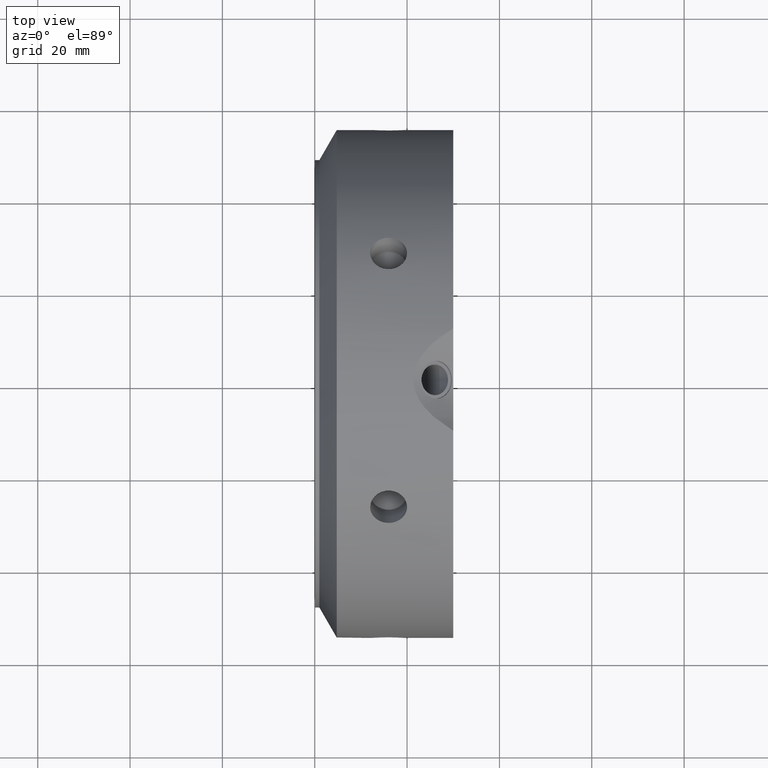
[diagram: clean part render]
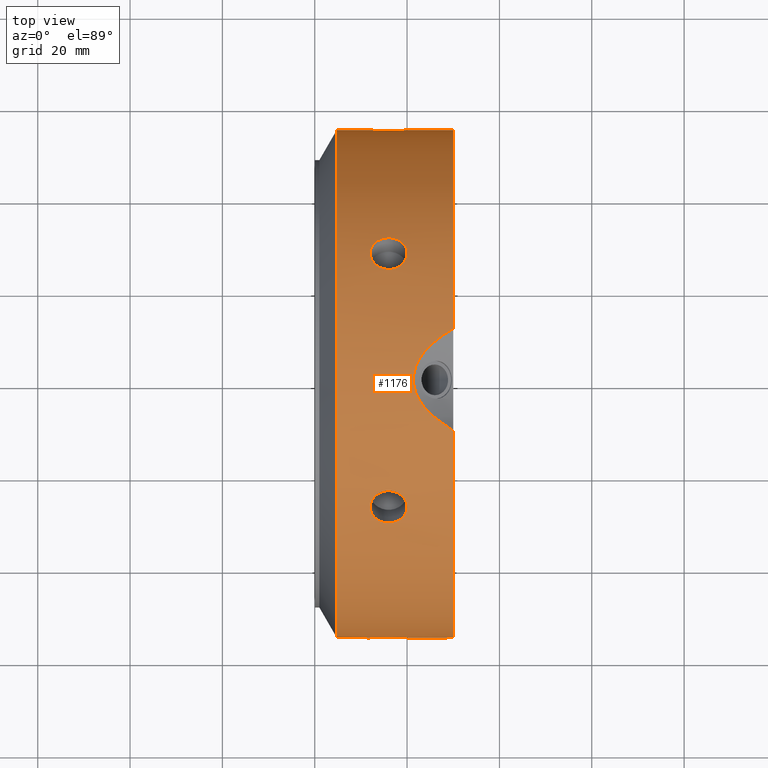
[diagram: same view with one face highlighted and labeled with its STEP entity id]
A machine part, top view. The second image highlights one B-rep face of the part: STEP entity #1176.
In plain terms, the highlighted cylindrical surface (bore or boss wall) has radius 55 mm, axis along (1, 0, 0).
Its self-contained STEP definition (entity closure, byte-faithful):
#90=CARTESIAN_POINT('',(11.999999999999996,27.500000000000043,47.631397208144108));
#91=VERTEX_POINT('',#90);
#92=CARTESIAN_POINT('',(20.0,27.50000000000005,47.631397208144108));
#93=VERTEX_POINT('',#92);
#94=CARTESIAN_POINT('',(11.999999999999996,27.500000000000057,47.631397208144094));
#95=CARTESIAN_POINT('',(11.999999999999996,27.935124948223553,47.380177702156139));
#96=CARTESIAN_POINT('',(12.10044885339684,28.395352863998596,47.105699330549619));
#97=CARTESIAN_POINT('',(12.508718819773028,29.235069760328575,46.589201214471714));
#98=CARTESIAN_POINT('',(12.816530126244007,29.614767293027789,46.347512854380248));
#99=CARTESIAN_POINT('',(13.526615960860187,30.211437054811331,45.960803527897014));
#100=CARTESIAN_POINT('',(13.976287700319762,30.468268242734169,45.790026100279555));
#101=CARTESIAN_POINT('',(14.961752431234759,30.808093468462676,45.562081130142708));
#102=CARTESIAN_POINT('',(15.497560511689183,30.891277918942759,45.505262866339322));
#103=CARTESIAN_POINT('',(16.502439488310813,30.891277918942759,45.505262866339322));
#104=CARTESIAN_POINT('',(17.038247568765247,30.808093468462676,45.562081130142715));
#105=CARTESIAN_POINT('',(18.023712299680238,30.468268242734169,45.790026100279562));
#106=CARTESIAN_POINT('',(18.473384039139809,30.211437054811334,45.960803527897021));
#107=CARTESIAN_POINT('',(19.183469873755989,29.614767293027789,46.347512854380248));
#108=CARTESIAN_POINT('',(19.49128118022697,29.235069760328575,46.589201214471714));
#109=CARTESIAN_POINT('',(19.899551146603159,28.395352863998596,47.105699330549619));
#110=CARTESIAN_POINT('',(20.0,27.935124948223546,47.380177702156132));
#111=CARTESIAN_POINT('',(20.0,27.50000000000005,47.631397208144087));
#112=B_SPLINE_CURVE_WITH_KNOTS('',3,(#94,#95,#96,#97,#98,#99,#100,#101,#102,#103,#104,#105,#106,#107,#108,#109,#110,#111),.UNSPECIFIED.,.F.,.U.,(4,2,2,2,2,2,2,2,4),(0.602927100172038,0.753658803764812,0.904390507357586,1.055122353850831,1.205854200344075,1.356586046837319,1.507317893330563,1.658049596923338,1.808781300516112),.UNSPECIFIED.);
#113=EDGE_CURVE('',#91,#93,#112,.T.);
#115=CARTESIAN_POINT('',(20.0,27.500000000000053,47.631397208144094));
#116=CARTESIAN_POINT('',(20.0,27.064875051776557,47.882616714132055));
#117=CARTESIAN_POINT('',(19.899551146603159,26.597055851288406,48.143946594920742));
#118=CARTESIAN_POINT('',(19.49128118022697,25.729896913593148,48.612913701090584));
#119=CARTESIAN_POINT('',(19.183469873755989,25.330739887605329,48.820897230116657));
#120=CARTESIAN_POINT('',(18.473384039139809,24.697504906098704,49.144273738249595));
#121=CARTESIAN_POINT('',(18.023712299680234,24.421191721427608,49.281307357666179));
#122=CARTESIAN_POINT('',(17.038247568765243,24.053872973759965,49.461632150925425));
#123=CARTESIAN_POINT('',(16.502439488310813,23.963074688667255,49.505262866339322));
#124=CARTESIAN_POINT('',(15.999999999999998,23.963074688667255,49.505262866339322));
#125=CARTESIAN_POINT('',(15.497560511689183,23.963074688667255,49.505262866339322));
#126=CARTESIAN_POINT('',(14.961752431234757,24.053872973759965,49.461632150925425));
#127=CARTESIAN_POINT('',(13.976287700319762,24.421191721427608,49.281307357666179));
#128=CARTESIAN_POINT('',(13.526615960860187,24.697504906098704,49.144273738249595));
#129=CARTESIAN_POINT('',(12.816530126244007,25.330739887605329,48.820897230116657));
#130=CARTESIAN_POINT('',(12.508718819773026,25.729896913593148,48.612913701090584));
#131=CARTESIAN_POINT('',(12.10044885339684,26.597055851288406,48.143946594920742));
#132=CARTESIAN_POINT('',(12.0,27.064875051776554,47.882616714132041));
#133=CARTESIAN_POINT('',(12.0,27.50000000000005,47.631397208144087));
#134=B_SPLINE_CURVE_WITH_KNOTS('',3,(#115,#116,#117,#118,#119,#120,#121,#122,#123,#124,#125,#126,#127,#128,#129,#130,#131,#132,#133),.UNSPECIFIED.,.F.,.U.,(4,2,2,2,3,2,2,2,4),(1.808781300516112,1.959513004108886,2.110244707701661,2.260976554194905,2.411708400688149,2.562440247181394,2.713172093674638,2.863903797267413,3.014635500860187),.UNSPECIFIED.);
#135=EDGE_CURVE('',#93,#91,#134,.T.);
#202=CARTESIAN_POINT('',(11.999999999999996,55.0,-3.663736E-014));
#203=VERTEX_POINT('',#202);
#204=CARTESIAN_POINT('',(20.0,55.0,-3.108624E-014));
#205=VERTEX_POINT('',#204);
#206=CARTESIAN_POINT('',(11.999999999999996,55.0,-3.261280E-014));
#207=CARTESIAN_POINT('',(11.999999999999996,55.0,-0.502439011975947));
#208=CARTESIAN_POINT('',(12.10044885339684,54.992408715286885,-1.038247264371157));
#209=CARTESIAN_POINT('',(12.508718819773026,54.964966673921609,-2.023712486618893));
#210=CARTESIAN_POINT('',(12.816530126244011,54.945507180633015,-2.473384375736422));
#211=CARTESIAN_POINT('',(13.526615960860187,54.908941960909928,-3.1834702103526));
#212=CARTESIAN_POINT('',(13.976287700319761,54.889459964161688,-3.491281257386644));
#213=CARTESIAN_POINT('',(14.961752431234757,54.861966442222538,-3.899551020782734));
#214=CARTESIAN_POINT('',(15.497560511689183,54.854352607609904,-4.000000000000034));
#215=CARTESIAN_POINT('',(16.502439488310813,54.854352607609904,-4.000000000000034));
#216=CARTESIAN_POINT('',(17.038247568765243,54.861966442222531,-3.899551020782734));
#217=CARTESIAN_POINT('',(18.023712299680234,54.889459964161674,-3.491281257386643));
#218=CARTESIAN_POINT('',(18.473384039139809,54.908941960909928,-3.183470210352601));
#219=CARTESIAN_POINT('',(19.183469873755993,54.945507180633015,-2.473384375736423));
#220=CARTESIAN_POINT('',(19.49128118022697,54.964966673921616,-2.023712486618892));
#221=CARTESIAN_POINT('',(19.899551146603159,54.992408715286899,-1.038247264371158));
#222=CARTESIAN_POINT('',(20.0,55.0,-0.502439011975948));
#223=CARTESIAN_POINT('',(20.0,55.0,-3.386180E-014));
#224=B_SPLINE_CURVE_WITH_KNOTS('',3,(#206,#207,#208,#209,#210,#211,#212,#213,#214,#215,#216,#217,#218,#219,#220,#221,#222,#223),.UNSPECIFIED.,.F.,.U.,(4,2,2,2,2,2,2,2,4),(0.602927100172037,0.753658803764812,0.904390507357586,1.05512235385083,1.205854200344075,1.356586046837319,1.507317893330564,1.658049596923338,1.808781300516112),.UNSPECIFIED.);
#225=EDGE_CURVE('',#203,#205,#224,.T.);
#227=CARTESIAN_POINT('',(20.0,55.0,-3.386180E-014));
#228=CARTESIAN_POINT('',(20.0,55.0,0.50243901197588));
#229=CARTESIAN_POINT('',(19.899551146603159,54.992408715286899,1.038247264371091));
#230=CARTESIAN_POINT('',(19.491281180226974,54.964966673921616,2.023712486618827));
#231=CARTESIAN_POINT('',(19.183469873755989,54.945507180633015,2.473384375736357));
#232=CARTESIAN_POINT('',(18.473384039139809,54.908941960909928,3.183470210352534));
#233=CARTESIAN_POINT('',(18.023712299680238,54.889459964161688,3.491281257386578));
#234=CARTESIAN_POINT('',(17.038247568765243,54.861966442222538,3.899551020782668));
#235=CARTESIAN_POINT('',(16.502439488310813,54.854352607609925,3.999999999999967));
#236=CARTESIAN_POINT('',(15.999999999999998,54.854352607609925,3.999999999999967));
#237=CARTESIAN_POINT('',(15.497560511689183,54.854352607609925,3.999999999999967));
#238=CARTESIAN_POINT('',(14.961752431234753,54.861966442222538,3.899551020782668));
#239=CARTESIAN_POINT('',(13.976287700319761,54.889459964161688,3.491281257386578));
#240=CARTESIAN_POINT('',(13.526615960860187,54.908941960909928,3.183470210352536));
#241=CARTESIAN_POINT('',(12.816530126244007,54.945507180633015,2.473384375736358));
#242=CARTESIAN_POINT('',(12.508718819773026,54.964966673921616,2.023712486618828));
#243=CARTESIAN_POINT('',(12.10044885339684,54.992408715286899,1.038247264371092));
#244=CARTESIAN_POINT('',(11.999999999999996,55.0,0.502439011975881));
#245=CARTESIAN_POINT('',(11.999999999999996,55.0,-3.261280E-014));
#246=B_SPLINE_CURVE_WITH_KNOTS('',3,(#227,#228,#229,#230,#231,#232,#233,#234,#235,#236,#237,#238,#239,#240,#241,#242,#243,#244,#245),.UNSPECIFIED.,.F.,.U.,(4,2,2,2,3,2,2,2,4),(1.808781300516112,1.959513004108886,2.11024470770166,2.260976554194905,2.411708400688149,2.562440247181394,2.713172093674638,2.863903797267413,3.014635500860186),.UNSPECIFIED.);
#247=EDGE_CURVE('',#205,#203,#246,.T.);
#314=CARTESIAN_POINT('',(11.999999999999996,27.499999999999986,-47.631397208144143));
#315=VERTEX_POINT('',#314);
#316=CARTESIAN_POINT('',(20.0,27.499999999999993,-47.631397208144143));
#317=VERTEX_POINT('',#316);
#318=CARTESIAN_POINT('',(11.999999999999996,27.499999999999993,-47.631397208144122));
#319=CARTESIAN_POINT('',(11.999999999999996,27.06487505177649,-47.882616714132084));
#320=CARTESIAN_POINT('',(12.100448853396838,26.597055851288346,-48.143946594920791));
#321=CARTESIAN_POINT('',(12.508718819773023,25.729896913593091,-48.612913701090619));
#322=CARTESIAN_POINT('',(12.816530126244011,25.330739887605262,-48.820897230116671));
#323=CARTESIAN_POINT('',(13.526615960860187,24.697504906098633,-49.144273738249609));
#324=CARTESIAN_POINT('',(13.976287700319761,24.421191721427547,-49.281307357666208));
#325=CARTESIAN_POINT('',(14.961752431234757,24.053872973759898,-49.461632150925453));
#326=CARTESIAN_POINT('',(15.497560511689183,23.963074688667184,-49.505262866339365));
#327=CARTESIAN_POINT('',(16.502439488310813,23.963074688667184,-49.505262866339365));
#328=CARTESIAN_POINT('',(17.038247568765236,24.053872973759901,-49.46163215092546));
#329=CARTESIAN_POINT('',(18.023712299680231,24.421191721427547,-49.281307357666215));
#330=CARTESIAN_POINT('',(18.473384039139805,24.697504906098633,-49.144273738249609));
#331=CARTESIAN_POINT('',(19.183469873755985,25.330739887605262,-48.820897230116671));
#332=CARTESIAN_POINT('',(19.491281180226977,25.729896913593091,-48.612913701090612));
#333=CARTESIAN_POINT('',(19.899551146603159,26.597055851288349,-48.143946594920791));
#334=CARTESIAN_POINT('',(20.0,27.06487505177649,-47.882616714132084));
#335=CARTESIAN_POINT('',(20.0,27.499999999999986,-47.631397208144122));
#336=B_SPLINE_CURVE_WITH_KNOTS('',3,(#318,#319,#320,#321,#322,#323,#324,#325,#326,#327,#328,#329,#330,#331,#332,#333,#334,#335),.UNSPECIFIED.,.F.,.U.,(4,2,2,2,2,2,2,2,4),(0.602927100172037,0.753658803764812,0.904390507357586,1.05512235385083,1.205854200344075,1.356586046837319,1.507317893330563,1.658049596923338,1.808781300516112),.UNSPECIFIED.);
#337=EDGE_CURVE('',#315,#317,#336,.T.);
#339=CARTESIAN_POINT('',(20.0,27.499999999999986,-47.631397208144136));
#340=CARTESIAN_POINT('',(20.0,27.935124948223478,-47.380177702156175));
#341=CARTESIAN_POINT('',(19.899551146603159,28.395352863998525,-47.105699330549662));
#342=CARTESIAN_POINT('',(19.491281180226974,29.235069760328503,-46.589201214471757));
#343=CARTESIAN_POINT('',(19.183469873755993,29.614767293027722,-46.347512854380291));
#344=CARTESIAN_POINT('',(18.473384039139809,30.211437054811263,-45.960803527897049));
#345=CARTESIAN_POINT('',(18.023712299680234,30.468268242734105,-45.790026100279597));
#346=CARTESIAN_POINT('',(17.038247568765239,30.808093468462616,-45.562081130142751));
#347=CARTESIAN_POINT('',(16.502439488310813,30.891277918942702,-45.505262866339358));
#348=CARTESIAN_POINT('',(15.999999999999998,30.891277918942702,-45.505262866339358));
#349=CARTESIAN_POINT('',(15.497560511689183,30.891277918942702,-45.505262866339358));
#350=CARTESIAN_POINT('',(14.961752431234759,30.808093468462616,-45.562081130142751));
#351=CARTESIAN_POINT('',(13.976287700319762,30.468268242734105,-45.790026100279597));
#352=CARTESIAN_POINT('',(13.526615960860187,30.211437054811263,-45.960803527897049));
#353=CARTESIAN_POINT('',(12.816530126244007,29.614767293027722,-46.347512854380284));
#354=CARTESIAN_POINT('',(12.508718819773026,29.235069760328511,-46.589201214471757));
#355=CARTESIAN_POINT('',(12.100448853396838,28.395352863998529,-47.105699330549662));
#356=CARTESIAN_POINT('',(11.999999999999996,27.935124948223478,-47.380177702156175));
#357=CARTESIAN_POINT('',(11.999999999999996,27.499999999999986,-47.631397208144136));
#358=B_SPLINE_CURVE_WITH_KNOTS('',3,(#339,#340,#341,#342,#343,#344,#345,#346,#347,#348,#349,#350,#351,#352,#353,#354,#355,#356,#357),.UNSPECIFIED.,.F.,.U.,(4,2,2,2,3,2,2,2,4),(1.808781300516112,1.959513004108886,2.11024470770166,2.260976554194905,2.411708400688149,2.562440247181393,2.713172093674638,2.863903797267412,3.014635500860186),.UNSPECIFIED.);
#359=EDGE_CURVE('',#317,#315,#358,.T.);
#426=CARTESIAN_POINT('',(11.999999999999996,-27.500000000000018,-47.631397208144115));
#427=VERTEX_POINT('',#426);
#428=CARTESIAN_POINT('',(20.0,-27.500000000000018,-47.631397208144115));
#429=VERTEX_POINT('',#428);
#430=CARTESIAN_POINT('',(11.999999999999996,-27.500000000000018,-47.631397208144115));
#431=CARTESIAN_POINT('',(11.999999999999996,-27.935124948223514,-47.380177702156161));
#432=CARTESIAN_POINT('',(12.10044885339684,-28.395352863998568,-47.105699330549633));
#433=CARTESIAN_POINT('',(12.50871881977303,-29.235069760328546,-46.589201214471736));
#434=CARTESIAN_POINT('',(12.816530126244011,-29.614767293027747,-46.34751285438027));
#435=CARTESIAN_POINT('',(13.526615960860187,-30.211437054811292,-45.960803527897028));
#436=CARTESIAN_POINT('',(13.976287700319762,-30.468268242734133,-45.790026100279576));
#437=CARTESIAN_POINT('',(14.961752431234757,-30.808093468462641,-45.56208113014273));
#438=CARTESIAN_POINT('',(15.497560511689183,-30.891277918942727,-45.505262866339336));
#439=CARTESIAN_POINT('',(16.502439488310813,-30.891277918942727,-45.505262866339336));
#440=CARTESIAN_POINT('',(17.038247568765239,-30.808093468462641,-45.56208113014273));
#441=CARTESIAN_POINT('',(18.023712299680234,-30.468268242734133,-45.790026100279576));
#442=CARTESIAN_POINT('',(18.473384039139809,-30.211437054811299,-45.960803527897028));
#443=CARTESIAN_POINT('',(19.183469873755989,-29.614767293027757,-46.34751285438027));
#444=CARTESIAN_POINT('',(19.49128118022697,-29.235069760328539,-46.589201214471743));
#445=CARTESIAN_POINT('',(19.899551146603159,-28.395352863998554,-47.105699330549641));
#446=CARTESIAN_POINT('',(20.0,-27.935124948223514,-47.380177702156161));
#447=CARTESIAN_POINT('',(20.0,-27.500000000000018,-47.631397208144115));
#448=B_SPLINE_CURVE_WITH_KNOTS('',3,(#430,#431,#432,#433,#434,#435,#436,#437,#438,#439,#440,#441,#442,#443,#444,#445,#446,#447),.UNSPECIFIED.,.F.,.U.,(4,2,2,2,2,2,2,2,4),(0.602927100172037,0.753658803764812,0.904390507357586,1.05512235385083,1.205854200344075,1.356586046837319,1.507317893330563,1.658049596923337,1.808781300516112),.UNSPECIFIED.);
#449=EDGE_CURVE('',#427,#429,#448,.T.);
#451=CARTESIAN_POINT('',(20.0,-27.500000000000018,-47.631397208144108));
#452=CARTESIAN_POINT('',(20.0,-27.064875051776522,-47.882616714132062));
#453=CARTESIAN_POINT('',(19.899551146603162,-26.597055851288371,-48.14394659492077));
#454=CARTESIAN_POINT('',(19.491281180226977,-25.729896913593123,-48.612913701090591));
#455=CARTESIAN_POINT('',(19.183469873755993,-25.330739887605304,-48.820897230116664));
#456=CARTESIAN_POINT('',(18.473384039139816,-24.697504906098672,-49.144273738249602));
#457=CARTESIAN_POINT('',(18.023712299680234,-24.421191721427583,-49.281307357666194));
#458=CARTESIAN_POINT('',(17.038247568765239,-24.05387297375993,-49.461632150925439));
#459=CARTESIAN_POINT('',(16.502439488310813,-23.963074688667216,-49.505262866339343));
#460=CARTESIAN_POINT('',(15.999999999999998,-23.963074688667216,-49.505262866339343));
#461=CARTESIAN_POINT('',(15.497560511689183,-23.963074688667216,-49.505262866339343));
#462=CARTESIAN_POINT('',(14.961752431234759,-24.05387297375993,-49.461632150925439));
#463=CARTESIAN_POINT('',(13.976287700319766,-24.421191721427576,-49.281307357666194));
#464=CARTESIAN_POINT('',(13.526615960860187,-24.697504906098668,-49.144273738249602));
#465=CARTESIAN_POINT('',(12.816530126244007,-25.330739887605294,-48.820897230116664));
#466=CARTESIAN_POINT('',(12.508718819773023,-25.729896913593123,-48.612913701090591));
#467=CARTESIAN_POINT('',(12.100448853396838,-26.597055851288371,-48.14394659492077));
#468=CARTESIAN_POINT('',(11.999999999999996,-27.064875051776518,-47.88261671413207));
#469=CARTESIAN_POINT('',(11.999999999999996,-27.500000000000014,-47.631397208144115));
#470=B_SPLINE_CURVE_WITH_KNOTS('',3,(#451,#452,#453,#454,#455,#456,#457,#458,#459,#460,#461,#462,#463,#464,#465,#466,#467,#468,#469),.UNSPECIFIED.,.F.,.U.,(4,2,2,2,3,2,2,2,4),(1.808781300516112,1.959513004108886,2.110244707701659,2.260976554194904,2.411708400688149,2.562440247181393,2.713172093674638,2.863903797267412,3.014635500860186),.UNSPECIFIED.);
#471=EDGE_CURVE('',#429,#427,#470,.T.);
#538=CARTESIAN_POINT('',(11.999999999999996,-55.0,1.526557E-014));
#539=VERTEX_POINT('',#538);
#540=CARTESIAN_POINT('',(20.0,-55.0,1.332268E-014));
#541=VERTEX_POINT('',#540);
#542=CARTESIAN_POINT('',(11.999999999999996,-55.0,9.020562E-015));
#543=CARTESIAN_POINT('',(11.999999999999996,-55.0,0.502439011975923));
#544=CARTESIAN_POINT('',(12.100448853396838,-54.992408715286885,1.038247264371134));
#545=CARTESIAN_POINT('',(12.508718819773023,-54.964966673921609,2.02371248661887));
#546=CARTESIAN_POINT('',(12.816530126244007,-54.945507180633015,2.4733843757364));
#547=CARTESIAN_POINT('',(13.526615960860187,-54.908941960909928,3.183470210352578));
#548=CARTESIAN_POINT('',(13.976287700319766,-54.889459964161688,3.491281257386621));
#549=CARTESIAN_POINT('',(14.961752431234759,-54.861966442222538,3.899551020782711));
#550=CARTESIAN_POINT('',(15.497560511689183,-54.854352607609911,4.00000000000001));
#551=CARTESIAN_POINT('',(16.502439488310813,-54.854352607609911,4.00000000000001));
#552=CARTESIAN_POINT('',(17.038247568765243,-54.861966442222531,3.89955102078271));
#553=CARTESIAN_POINT('',(18.023712299680234,-54.889459964161674,3.49128125738662));
#554=CARTESIAN_POINT('',(18.473384039139809,-54.908941960909928,3.183470210352577));
#555=CARTESIAN_POINT('',(19.183469873755993,-54.945507180633015,2.473384375736399));
#556=CARTESIAN_POINT('',(19.49128118022697,-54.964966673921616,2.023712486618868));
#557=CARTESIAN_POINT('',(19.899551146603159,-54.992408715286899,1.038247264371135));
#558=CARTESIAN_POINT('',(20.0,-55.0,0.502439011975925));
#559=CARTESIAN_POINT('',(20.0,-55.0,1.040834E-014));
#560=B_SPLINE_CURVE_WITH_KNOTS('',3,(#542,#543,#544,#545,#546,#547,#548,#549,#550,#551,#552,#553,#554,#555,#556,#557,#558,#559),.UNSPECIFIED.,.F.,.U.,(4,2,2,2,2,2,2,2,4),(0.602927100172037,0.753658803764812,0.904390507357586,1.05512235385083,1.205854200344075,1.356586046837319,1.507317893330564,1.658049596923338,1.808781300516112),.UNSPECIFIED.);
#561=EDGE_CURVE('',#539,#541,#560,.T.);
#563=CARTESIAN_POINT('',(20.0,-55.0,1.068590E-014));
#564=CARTESIAN_POINT('',(20.0,-55.0,-0.502439011975904));
#565=CARTESIAN_POINT('',(19.899551146603159,-54.992408715286899,-1.038247264371114));
#566=CARTESIAN_POINT('',(19.49128118022697,-54.964966673921616,-2.02371248661885));
#567=CARTESIAN_POINT('',(19.183469873755989,-54.945507180633015,-2.473384375736381));
#568=CARTESIAN_POINT('',(18.473384039139809,-54.908941960909928,-3.183470210352558));
#569=CARTESIAN_POINT('',(18.023712299680238,-54.889459964161688,-3.491281257386601));
#570=CARTESIAN_POINT('',(17.038247568765243,-54.861966442222538,-3.899551020782692));
#571=CARTESIAN_POINT('',(16.502439488310813,-54.854352607609904,-3.999999999999991));
#572=CARTESIAN_POINT('',(15.999999999999998,-54.854352607609911,-3.999999999999991));
#573=CARTESIAN_POINT('',(15.497560511689183,-54.854352607609911,-3.999999999999991));
#574=CARTESIAN_POINT('',(14.961752431234753,-54.861966442222531,-3.899551020782691));
#575=CARTESIAN_POINT('',(13.976287700319761,-54.889459964161674,-3.491281257386601));
#576=CARTESIAN_POINT('',(13.526615960860187,-54.908941960909928,-3.18347021035256));
#577=CARTESIAN_POINT('',(12.816530126244007,-54.945507180633015,-2.473384375736382));
#578=CARTESIAN_POINT('',(12.508718819773026,-54.964966673921616,-2.023712486618851));
#579=CARTESIAN_POINT('',(12.10044885339684,-54.992408715286899,-1.038247264371115));
#580=CARTESIAN_POINT('',(11.999999999999996,-55.0,-0.502439011975905));
#581=CARTESIAN_POINT('',(11.999999999999996,-55.0,9.159340E-015));
#582=B_SPLINE_CURVE_WITH_KNOTS('',3,(#563,#564,#565,#566,#567,#568,#569,#570,#571,#572,#573,#574,#575,#576,#577,#578,#579,#580,#581),.UNSPECIFIED.,.F.,.U.,(4,2,2,2,3,2,2,2,4),(1.808781300516112,1.959513004108886,2.11024470770166,2.260976554194905,2.411708400688149,2.562440247181394,2.713172093674638,2.863903797267413,3.014635500860186),.UNSPECIFIED.);
#583=EDGE_CURVE('',#541,#539,#582,.T.);
#687=CARTESIAN_POINT('',(11.999999999999996,-27.499999999999993,47.631397208144136));
#688=VERTEX_POINT('',#687);
#689=CARTESIAN_POINT('',(20.0,-27.499999999999996,47.631397208144136));
#690=VERTEX_POINT('',#689);
#691=CARTESIAN_POINT('',(12.0,-27.499999999999996,47.631397208144122));
#692=CARTESIAN_POINT('',(12.0,-27.064875051776497,47.882616714132084));
#693=CARTESIAN_POINT('',(12.100448853396838,-26.597055851288363,48.143946594920777));
#694=CARTESIAN_POINT('',(12.508718819773021,-25.729896913593105,48.612913701090612));
#695=CARTESIAN_POINT('',(12.816530126244007,-25.330739887605276,48.820897230116671));
#696=CARTESIAN_POINT('',(13.526615960860187,-24.697504906098644,49.144273738249609));
#697=CARTESIAN_POINT('',(13.976287700319769,-24.421191721427547,49.281307357666208));
#698=CARTESIAN_POINT('',(14.961752431234762,-24.053872973759901,49.461632150925453));
#699=CARTESIAN_POINT('',(15.497560511689183,-23.963074688667199,49.505262866339351));
#700=CARTESIAN_POINT('',(16.502439488310813,-23.963074688667199,49.505262866339351));
#701=CARTESIAN_POINT('',(17.038247568765236,-24.053872973759901,49.461632150925453));
#702=CARTESIAN_POINT('',(18.023712299680227,-24.421191721427547,49.281307357666208));
#703=CARTESIAN_POINT('',(18.473384039139805,-24.697504906098644,49.144273738249609));
#704=CARTESIAN_POINT('',(19.183469873755985,-25.330739887605276,48.820897230116671));
#705=CARTESIAN_POINT('',(19.491281180226977,-25.729896913593095,48.612913701090605));
#706=CARTESIAN_POINT('',(19.899551146603162,-26.597055851288353,48.14394659492077));
#707=CARTESIAN_POINT('',(19.999999999999996,-27.064875051776497,47.882616714132091));
#708=CARTESIAN_POINT('',(19.999999999999996,-27.499999999999993,47.631397208144136));
#709=B_SPLINE_CURVE_WITH_KNOTS('',3,(#691,#692,#693,#694,#695,#696,#697,#698,#699,#700,#701,#702,#703,#704,#705,#706,#707,#708),.UNSPECIFIED.,.F.,.U.,(4,2,2,2,2,2,2,2,4),(0.602927100172037,0.753658803764811,0.904390507357585,1.05512235385083,1.205854200344074,1.356586046837318,1.507317893330562,1.658049596923337,1.808781300516111),.UNSPECIFIED.);
#710=EDGE_CURVE('',#688,#690,#709,.T.);
#712=CARTESIAN_POINT('',(20.0,-27.499999999999996,47.631397208144136));
#713=CARTESIAN_POINT('',(20.0,-27.935124948223489,47.380177702156175));
#714=CARTESIAN_POINT('',(19.899551146603155,-28.395352863998532,47.105699330549662));
#715=CARTESIAN_POINT('',(19.49128118022697,-29.235069760328511,46.589201214471757));
#716=CARTESIAN_POINT('',(19.183469873755989,-29.614767293027732,46.347512854380284));
#717=CARTESIAN_POINT('',(18.473384039139809,-30.21143705481127,45.960803527897049));
#718=CARTESIAN_POINT('',(18.023712299680238,-30.468268242734116,45.790026100279597));
#719=CARTESIAN_POINT('',(17.038247568765243,-30.808093468462623,45.562081130142751));
#720=CARTESIAN_POINT('',(16.502439488310813,-30.891277918942706,45.505262866339351));
#721=CARTESIAN_POINT('',(15.999999999999998,-30.891277918942706,45.505262866339351));
#722=CARTESIAN_POINT('',(15.497560511689183,-30.891277918942706,45.505262866339351));
#723=CARTESIAN_POINT('',(14.961752431234753,-30.808093468462623,45.562081130142751));
#724=CARTESIAN_POINT('',(13.976287700319761,-30.468268242734116,45.790026100279597));
#725=CARTESIAN_POINT('',(13.526615960860187,-30.21143705481127,45.960803527897049));
#726=CARTESIAN_POINT('',(12.816530126244011,-29.614767293027732,46.347512854380284));
#727=CARTESIAN_POINT('',(12.508718819773028,-29.235069760328511,46.589201214471757));
#728=CARTESIAN_POINT('',(12.100448853396841,-28.395352863998532,47.105699330549662));
#729=CARTESIAN_POINT('',(11.999999999999996,-27.935124948223486,47.380177702156168));
#730=CARTESIAN_POINT('',(11.999999999999996,-27.499999999999996,47.631397208144122));
#731=B_SPLINE_CURVE_WITH_KNOTS('',3,(#712,#713,#714,#715,#716,#717,#718,#719,#720,#721,#722,#723,#724,#725,#726,#727,#728,#729,#730),.UNSPECIFIED.,.F.,.U.,(4,2,2,2,3,2,2,2,4),(1.808781300516111,1.959513004108885,2.110244707701659,2.260976554194904,2.411708400688148,2.562440247181393,2.713172093674638,2.863903797267411,3.014635500860186),.UNSPECIFIED.);
#732=EDGE_CURVE('',#690,#688,#731,.T.);
#873=CARTESIAN_POINT('',(29.999999999999986,41.111705432493409,-36.535293572542855));
#874=VERTEX_POINT('',#873);
#875=CARTESIAN_POINT('',(29.999999999999993,52.196345084791119,-17.336134511170648));
#876=VERTEX_POINT('',#875);
#884=CARTESIAN_POINT('',(29.999999999999986,52.196345084791119,-17.336134511170638));
#885=CARTESIAN_POINT('',(29.060007141965404,52.017152142314025,-17.875655974635688));
#886=CARTESIAN_POINT('',(28.15728516807912,51.819215460173325,-18.444034927937331));
#887=CARTESIAN_POINT('',(25.807597105333112,51.206792006965358,-20.103006443209136));
#888=CARTESIAN_POINT('',(24.291894560249723,50.694338114816787,-21.391567846151979));
#889=CARTESIAN_POINT('',(22.612611692154978,49.706703451794908,-23.555730224074331));
#890=CARTESIAN_POINT('',(22.150845850446295,49.34067544891721,-24.316105741964392));
#891=CARTESIAN_POINT('',(21.514154564410532,48.537047733110093,-25.883010830963805));
#892=CARTESIAN_POINT('',(21.33974596215559,48.099252846583553,-26.689650263615334));
#893=CARTESIAN_POINT('',(21.33974596215559,47.163541569704677,-28.310349736384719));
#894=CARTESIAN_POINT('',(21.514154564410543,46.683868772597449,-29.092810946089386));
#895=CARTESIAN_POINT('',(22.150845850446309,45.728703018108391,-30.572225507663305));
#896=CARTESIAN_POINT('',(22.612611692154971,45.253212504638697,-31.269402815596923));
#897=CARTESIAN_POINT('',(24.291894560249716,43.872810238954344,-33.206800712393125));
#898=CARTESIAN_POINT('',(25.807597105333095,43.013110275744005,-34.294879502733423));
#899=CARTESIAN_POINT('',(28.157285168079103,41.882610525967856,-35.654739528720818));
#900=CARTESIAN_POINT('',(29.060007141965407,41.489348254502552,-36.110347200446284));
#901=CARTESIAN_POINT('',(29.999999999999993,41.111705432493409,-36.535293572542862));
#902=B_SPLINE_CURVE_WITH_KNOTS('',3,(#884,#885,#886,#887,#888,#889,#890,#891,#892,#893,#894,#895,#896,#897,#898,#899,#900,#901),.UNSPECIFIED.,.F.,.U.,(4,2,2,2,2,2,2,2,4),(2.33418702633611,2.65499915472999,3.216425920857322,3.497139303920988,3.777852686984654,4.05856607004832,4.339279453111987,4.900706219239318,5.221518347633199),.UNSPECIFIED.);
#903=EDGE_CURVE('',#876,#874,#902,.T.);
#1044=CARTESIAN_POINT('',(29.999999999999986,-52.19634508479114,-17.336134511170609));
#1045=VERTEX_POINT('',#1044);
#1046=CARTESIAN_POINT('',(29.999999999999986,-41.111705432493444,-36.53529357254282));
#1047=VERTEX_POINT('',#1046);
#1055=CARTESIAN_POINT('',(29.999999999999982,-41.111705432493444,-36.53529357254282));
#1056=CARTESIAN_POINT('',(29.00235846310246,-41.512508653632025,-36.084285729096145));
#1057=CARTESIAN_POINT('',(28.046772252161993,-41.930838059605222,-35.598843194104049));
#1058=CARTESIAN_POINT('',(25.686448396470301,-43.080641768413045,-34.209691486458738));
#1059=CARTESIAN_POINT('',(24.208355563743176,-43.929737571784777,-33.130557194272598));
#1060=CARTESIAN_POINT('',(22.574225337142508,-45.291078156154526,-31.214294453789847));
#1061=CARTESIAN_POINT('',(22.125603222101368,-45.759723836494537,-30.525416772690516));
#1062=CARTESIAN_POINT('',(21.508088513901065,-46.700170616414013,-29.066259808498312));
#1063=CARTESIAN_POINT('',(21.339745962155607,-47.171971920287717,-28.29574794084926));
#1064=CARTESIAN_POINT('',(21.339745962155607,-48.090822496000541,-26.704252059150718));
#1065=CARTESIAN_POINT('',(21.508088513901065,-48.522204695365176,-25.91040421063294));
#1066=CARTESIAN_POINT('',(22.125603222101361,-49.315648304504862,-24.366374926219301));
#1067=CARTESIAN_POINT('',(22.574225337142497,-49.677911036266984,-23.616077021121342));
#1068=CARTESIAN_POINT('',(24.208355563743162,-50.656772957665758,-21.47899012161302));
#1069=CARTESIAN_POINT('',(25.686448396470283,-51.166782767108018,-20.204084439553284));
#1070=CARTESIAN_POINT('',(28.04677225216199,-51.794921581235499,-18.513749364537482));
#1071=CARTESIAN_POINT('',(29.00235846310245,-52.00616244562957,-17.908744204318584));
#1072=CARTESIAN_POINT('',(29.999999999999982,-52.196345084791133,-17.336134511170602));
#1073=B_SPLINE_CURVE_WITH_KNOTS('',3,(#1055,#1056,#1057,#1058,#1059,#1060,#1061,#1062,#1063,#1064,#1065,#1066,#1067,#1068,#1069,#1070,#1071,#1072),.UNSPECIFIED.,.F.,.U.,(4,2,2,2,2,2,2,2,4),(2.263948461845117,2.603740117618769,3.155050463046468,3.430705635760318,3.706360808474168,3.982015981188017,4.257671153901866,4.808981499329564,5.148773155103218),.UNSPECIFIED.);
#1074=EDGE_CURVE('',#1047,#1045,#1073,.T.);
#1082=CARTESIAN_POINT('',(17.376388374866266,0.0,0.0));
#1083=DIRECTION('',(1.0,0.0,0.0));
#1084=DIRECTION('',(0.0,1.0,0.0));
#1085=AXIS2_PLACEMENT_3D('',#1082,#1083,#1084);
#1086=CYLINDRICAL_SURFACE('',#1085,55.0);
#1087=CARTESIAN_POINT('',(4.752776749732544,55.0,0.0));
#1088=VERTEX_POINT('',#1087);
#1089=CARTESIAN_POINT('',(4.752776749732544,0.0,0.0));
#1090=DIRECTION('',(1.0,0.0,0.0));
#1091=DIRECTION('',(0.0,1.0,0.0));
#1092=AXIS2_PLACEMENT_3D('',#1089,#1090,#1091);
#1093=CIRCLE('',#1092,55.0);
#1094=EDGE_CURVE('',#1088,#1088,#1093,.T.);
#1095=ORIENTED_EDGE('',*,*,#1094,.T.);
#1096=EDGE_LOOP('',(#1095));
#1097=FACE_OUTER_BOUND('',#1096,.T.);
#1098=ORIENTED_EDGE('',*,*,#113,.T.);
#1099=ORIENTED_EDGE('',*,*,#135,.T.);
#1100=EDGE_LOOP('',(#1098,#1099));
#1101=FACE_BOUND('',#1100,.T.);
#1102=ORIENTED_EDGE('',*,*,#225,.T.);
#1103=ORIENTED_EDGE('',*,*,#247,.T.);
#1104=EDGE_LOOP('',(#1102,#1103));
#1105=FACE_BOUND('',#1104,.T.);
#1106=ORIENTED_EDGE('',*,*,#337,.T.);
#1107=ORIENTED_EDGE('',*,*,#359,.T.);
#1108=EDGE_LOOP('',(#1106,#1107));
#1109=FACE_BOUND('',#1108,.T.);
#1110=ORIENTED_EDGE('',*,*,#449,.T.);
#1111=ORIENTED_EDGE('',*,*,#471,.T.);
#1112=EDGE_LOOP('',(#1110,#1111));
#1113=FACE_BOUND('',#1112,.T.);
#1114=ORIENTED_EDGE('',*,*,#561,.T.);
#1115=ORIENTED_EDGE('',*,*,#583,.T.);
#1116=EDGE_LOOP('',(#1114,#1115));
#1117=FACE_BOUND('',#1116,.T.);
#1118=ORIENTED_EDGE('',*,*,#710,.T.);
#1119=ORIENTED_EDGE('',*,*,#732,.T.);
#1120=EDGE_LOOP('',(#1118,#1119));
#1121=FACE_BOUND('',#1120,.T.);
#1122=ORIENTED_EDGE('',*,*,#903,.T.);
#1123=CARTESIAN_POINT('',(29.999999999999986,0.0,0.0));
#1124=DIRECTION('',(1.0,0.0,0.0));
#1125=DIRECTION('',(0.0,1.0,0.0));
#1126=AXIS2_PLACEMENT_3D('',#1123,#1124,#1125);
#1127=CIRCLE('',#1126,55.0);
#1128=EDGE_CURVE('',#1047,#874,#1127,.T.);
#1129=ORIENTED_EDGE('',*,*,#1128,.F.);
#1130=ORIENTED_EDGE('',*,*,#1074,.T.);
#1131=CARTESIAN_POINT('',(29.999999999999986,-11.084639652297694,53.871428083713447));
#1132=VERTEX_POINT('',#1131);
#1133=CARTESIAN_POINT('',(29.999999999999986,0.0,0.0));
#1134=DIRECTION('',(1.0,0.0,0.0));
#1135=DIRECTION('',(0.0,1.0,0.0));
#1136=AXIS2_PLACEMENT_3D('',#1133,#1134,#1135);
#1137=CIRCLE('',#1136,55.0);
#1138=EDGE_CURVE('',#1132,#1045,#1137,.T.);
#1139=ORIENTED_EDGE('',*,*,#1138,.F.);
#1140=CARTESIAN_POINT('',(29.999999999999986,11.084639652297694,53.871428083713447));
#1141=VERTEX_POINT('',#1140);
#1142=CARTESIAN_POINT('',(29.999999999999986,-11.084639652297689,53.871428083713447));
#1143=CARTESIAN_POINT('',(29.71071539346962,-10.913272376839613,53.906688788027743));
#1144=CARTESIAN_POINT('',(29.424903568010414,-10.738565016344008,53.941785034208394));
#1145=CARTESIAN_POINT('',(27.739253698508769,-9.673315221481873,54.150198950524604));
#1146=CARTESIAN_POINT('',(26.431241032822264,-8.702965265539945,54.317983959980566));
#1147=CARTESIAN_POINT('',(24.247185969711257,-6.656526844495048,54.604457563414798));
#1148=CARTESIAN_POINT('',(23.226171017422416,-5.481926031469514,54.741807497349804));
#1149=CARTESIAN_POINT('',(22.13097360686195,-3.522066476679503,54.891022204814647));
#1150=CARTESIAN_POINT('',(21.837357376153928,-2.835224348713799,54.93137486398291));
#1151=CARTESIAN_POINT('',(21.441504257680396,-1.429951105739836,54.985904388838506));
#1152=CARTESIAN_POINT('',(21.339745962155593,-0.711382067851648,55.0));
#1153=CARTESIAN_POINT('',(21.339745962155593,0.711382067851648,55.0));
#1154=CARTESIAN_POINT('',(21.441504257680396,1.429951105739836,54.985904388838506));
#1155=CARTESIAN_POINT('',(21.837357376153928,2.835224348713799,54.93137486398291));
#1156=CARTESIAN_POINT('',(22.13097360686195,3.522066476679503,54.891022204814647));
#1157=CARTESIAN_POINT('',(23.226171017422416,5.481926031469514,54.741807497349804));
#1158=CARTESIAN_POINT('',(24.247185969711257,6.656526844495048,54.604457563414798));
#1159=CARTESIAN_POINT('',(26.431241032822264,8.702965265539941,54.317983959980566));
#1160=CARTESIAN_POINT('',(27.739253698508769,9.673315221481872,54.150198950524604));
#1161=CARTESIAN_POINT('',(29.424903568010414,10.738565016344008,53.941785034208387));
#1162=CARTESIAN_POINT('',(29.71071539346962,10.913272376839611,53.906688788027736));
#1163=CARTESIAN_POINT('',(29.999999999999986,11.084639652297687,53.87142808371344));
#1164=B_SPLINE_CURVE_WITH_KNOTS('',3,(#1142,#1143,#1144,#1145,#1146,#1147,#1148,#1149,#1150,#1151,#1152,#1153,#1154,#1155,#1156,#1157,#1158,#1159,#1160,#1161,#1162,#1163),.UNSPECIFIED.,.F.,.U.,(4,2,2,2,2,2,2,2,2,2,4),(1.330092702985719,1.42551667970903,1.900688906278707,2.327518146989696,2.54093276734519,2.754347387700684,2.967762008056178,3.181176628411673,3.608005869122661,4.083178095692338,4.178602072415649),.UNSPECIFIED.);
#1165=EDGE_CURVE('',#1132,#1141,#1164,.T.);
#1166=ORIENTED_EDGE('',*,*,#1165,.T.);
#1167=CARTESIAN_POINT('',(29.999999999999986,0.0,0.0));
#1168=DIRECTION('',(1.0,0.0,0.0));
#1169=DIRECTION('',(0.0,1.0,0.0));
#1170=AXIS2_PLACEMENT_3D('',#1167,#1168,#1169);
#1171=CIRCLE('',#1170,55.0);
#1172=EDGE_CURVE('',#876,#1141,#1171,.T.);
#1173=ORIENTED_EDGE('',*,*,#1172,.F.);
#1174=EDGE_LOOP('',(#1122,#1129,#1130,#1139,#1166,#1173));
#1175=FACE_BOUND('',#1174,.T.);
#1176=ADVANCED_FACE('',(#1097,#1101,#1105,#1109,#1113,#1117,#1121,#1175),#1086,.T.);